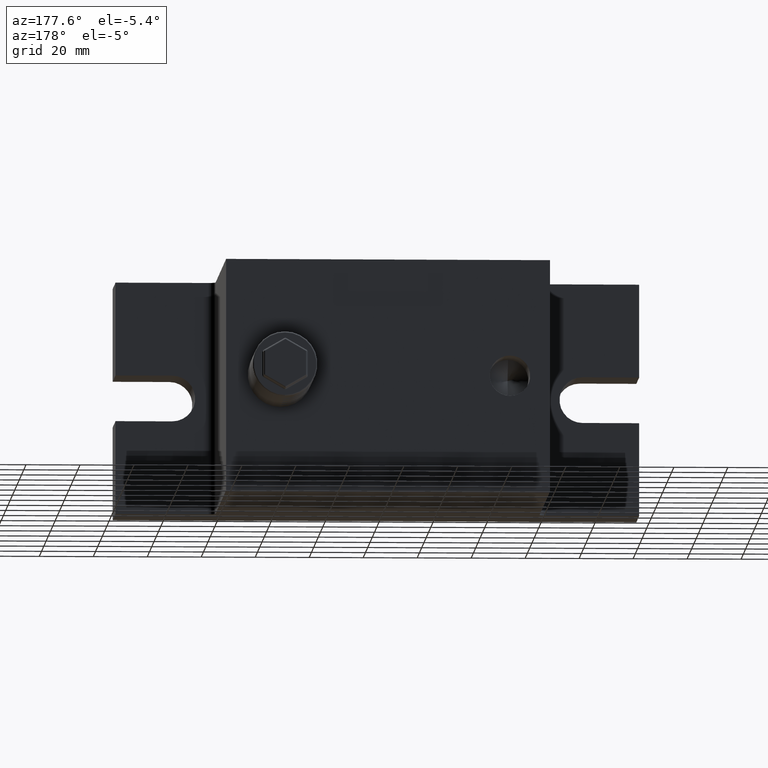
[diagram: clean part render]
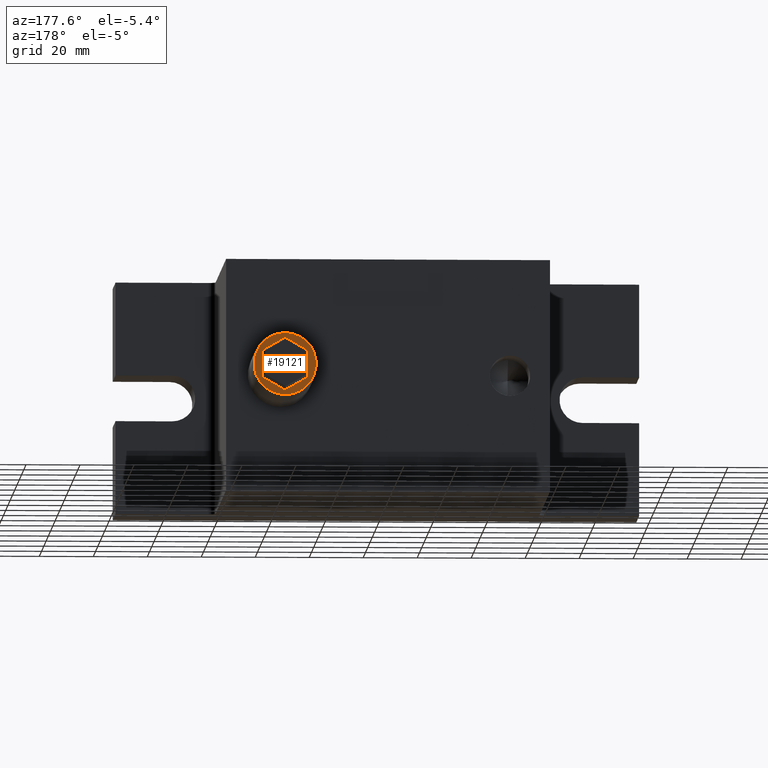
[diagram: same view with one face highlighted and labeled with its STEP entity id]
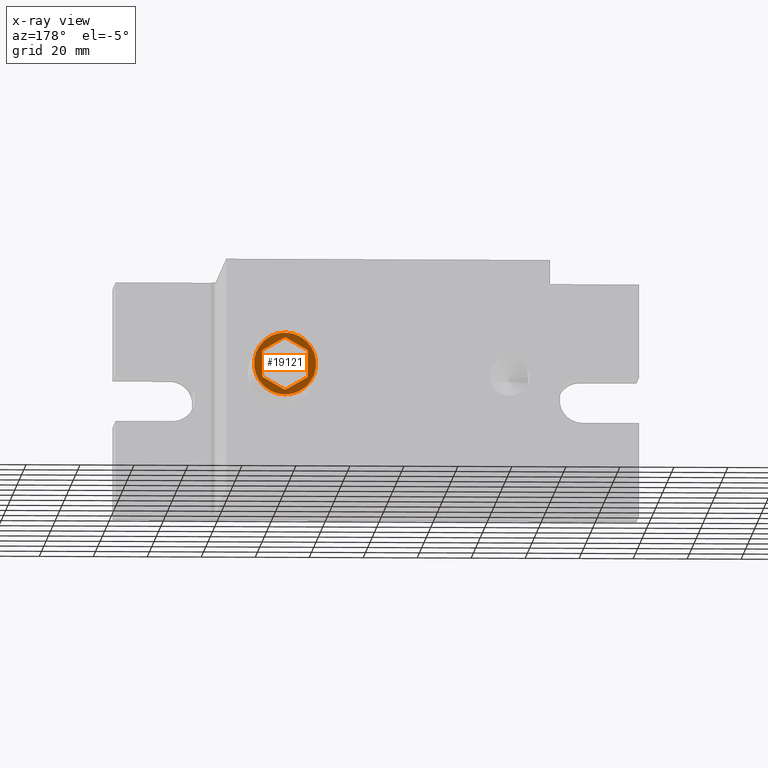
[diagram: x-ray of the same camera — body ghosted, the highlighted face saturated]
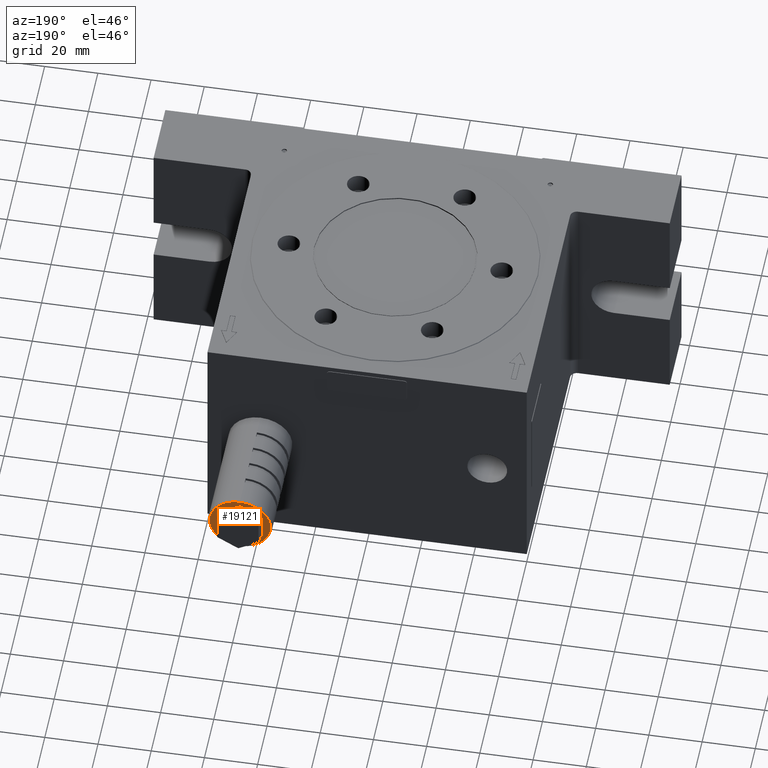
[diagram: same view with one face highlighted and labeled with its STEP entity id]
A machine part, auxiliary view. The second image highlights one B-rep face of the part: STEP entity #19121.
The next image is the same camera in x-ray: the body ghosted, the highlighted face saturated — about 0% of this face is hidden behind the body in this view.
A second angle (auxiliary view) of the same face is appended — the face is thin or edge-on in the first view.
In plain terms, the highlighted planar face has unit normal (0, 1, 0).
Its self-contained STEP definition (entity closure, byte-faithful):
#38 = DIRECTION ( 'NONE',  ( 0.0000000000000000000, 0.0000000000000000000, -1.000000000000000000 ) ) ;
#293 = AXIS2_PLACEMENT_3D ( 'NONE', #22059, #8232, #22123 ) ;
#453 = VERTEX_POINT ( 'NONE', #9742 ) ;
#455 = AXIS2_PLACEMENT_3D ( 'NONE', #21220, #12687, #15991 ) ;
#952 = CARTESIAN_POINT ( 'NONE',  ( 40.00000000000000000, 104.0000000000000000, -9.660254037844390900 ) ) ;
#1334 = LINE ( 'NONE', #6208, #20035 ) ;
#1468 = CARTESIAN_POINT ( 'NONE',  ( 39.50000000000000000, 104.0000000000000000, 9.526279441628821200 ) ) ;
#1549 = DIRECTION ( 'NONE',  ( 0.0000000000000000000, 1.000000000000000000, 0.0000000000000000000 ) ) ;
#1559 = ORIENTED_EDGE ( 'NONE', *, *, #20368, .T. ) ;
#1689 = ORIENTED_EDGE ( 'NONE', *, *, #11625, .F. ) ;
#2076 = CIRCLE ( 'NONE', #2381, 1.000000000000000000 ) ;
#2371 = ORIENTED_EDGE ( 'NONE', *, *, #16605, .T. ) ;
#2381 = AXIS2_PLACEMENT_3D ( 'NONE', #4890, #6469, #8246 ) ;
#2446 = ORIENTED_EDGE ( 'NONE', *, *, #7311, .T. ) ;
#2482 = ORIENTED_EDGE ( 'NONE', *, *, #8569, .F. ) ;
#2816 = CARTESIAN_POINT ( 'NONE',  ( 32.00000000000000000, 104.0000000000000000, -5.196152422706630200 ) ) ;
#3234 = DIRECTION ( 'NONE',  ( 0.0000000000000000000, 0.0000000000000000000, -1.000000000000000000 ) ) ;
#3460 = AXIS2_PLACEMENT_3D ( 'NONE', #7741, #19707, #7900 ) ;
#3499 = DIRECTION ( 'NONE',  ( 0.0000000000000000000, 1.000000000000000000, 0.0000000000000000000 ) ) ;
#3567 = AXIS2_PLACEMENT_3D ( 'NONE', #20327, #22069, #3234 ) ;
#3711 = ORIENTED_EDGE ( 'NONE', *, *, #12226, .T. ) ;
#3713 = VERTEX_POINT ( 'NONE', #1468 ) ;
#4005 = PLANE ( 'NONE',  #7430 ) ;
#4212 = VECTOR ( 'NONE', #15179, 1000.000000000000000 ) ;
#4730 = LINE ( 'NONE', #21878, #21002 ) ;
#4854 = EDGE_CURVE ( 'NONE', #12864, #5279, #13663, .T. ) ;
#4890 = CARTESIAN_POINT ( 'NONE',  ( 40.00000000000000000, 104.0000000000000000, 8.660254037844390900 ) ) ;
#4917 = CARTESIAN_POINT ( 'NONE',  ( 32.50000000000000000, 104.0000000000000000, -4.330127018922191000 ) ) ;
#5225 = EDGE_CURVE ( 'NONE', #18797, #6544, #20899, .T. ) ;
#5279 = VERTEX_POINT ( 'NONE', #16143 ) ;
#5328 = CARTESIAN_POINT ( 'NONE',  ( 48.50000000000000000, 104.0000000000000000, 4.330127018922191000 ) ) ;
#5338 = DIRECTION ( 'NONE',  ( 0.8660254037844387100, -0.0000000000000000000, 0.4999999999999998900 ) ) ;
#5480 = CARTESIAN_POINT ( 'NONE',  ( 48.00000000000000000, 104.0000000000000000, 5.196152422706630200 ) ) ;
#5574 = VERTEX_POINT ( 'NONE', #19814 ) ;
#6187 = AXIS2_PLACEMENT_3D ( 'NONE', #13511, #20512, #11956 ) ;
#6208 = CARTESIAN_POINT ( 'NONE',  ( 48.50000000000000000, 104.0000000000000000, 0.0000000000000000000 ) ) ;
#6422 = ORIENTED_EDGE ( 'NONE', *, *, #19928, .F. ) ;
#6469 = DIRECTION ( 'NONE',  ( 0.0000000000000000000, 1.000000000000000000, 0.0000000000000000000 ) ) ;
#6544 = VERTEX_POINT ( 'NONE', #11961 ) ;
#7217 = AXIS2_PLACEMENT_3D ( 'NONE', #8427, #3499, #15390 ) ;
#7261 = FACE_BOUND ( 'NONE', #15014, .T. ) ;
#7311 = EDGE_CURVE ( 'NONE', #13362, #10158, #1334, .T. ) ;
#7430 = AXIS2_PLACEMENT_3D ( 'NONE', #17822, #21084, #7799 ) ;
#7741 = CARTESIAN_POINT ( 'NONE',  ( 47.50000000000000000, 104.0000000000000000, -4.330127018922199900 ) ) ;
#7799 = DIRECTION ( 'NONE',  ( 0.0000000000000000000, 0.0000000000000000000, -1.000000000000000000 ) ) ;
#7900 = DIRECTION ( 'NONE',  ( 0.0000000000000000000, 0.0000000000000000000, -1.000000000000000000 ) ) ;
#7902 = ORIENTED_EDGE ( 'NONE', *, *, #10884, .F. ) ;
#8053 = AXIS2_PLACEMENT_3D ( 'NONE', #4917, #1549, #38 ) ;
#8232 = DIRECTION ( 'NONE',  ( 0.0000000000000000000, 1.000000000000000000, 0.0000000000000000000 ) ) ;
#8246 = DIRECTION ( 'NONE',  ( 0.0000000000000000000, 0.0000000000000000000, -1.000000000000000000 ) ) ;
#8427 = CARTESIAN_POINT ( 'NONE',  ( 47.50000000000000000, 104.0000000000000000, 4.330127018922191000 ) ) ;
#8497 = ORIENTED_EDGE ( 'NONE', *, *, #5225, .T. ) ;
#8567 = EDGE_CURVE ( 'NONE', #453, #14883, #14821, .T. ) ;
#8569 = EDGE_CURVE ( 'NONE', #16702, #5574, #10565, .T. ) ;
#8814 = DIRECTION ( 'NONE',  ( 0.8660254037844387100, -0.0000000000000000000, -0.4999999999999998900 ) ) ;
#9068 = ORIENTED_EDGE ( 'NONE', *, *, #11858, .F. ) ;
#9390 = FACE_OUTER_BOUND ( 'NONE', #20390, .T. ) ;
#9615 = CARTESIAN_POINT ( 'NONE',  ( 31.50000000000000000, 104.0000000000000000, 0.0000000000000000000 ) ) ;
#9742 = CARTESIAN_POINT ( 'NONE',  ( 40.00000000000000000, 104.0000000000000000, -11.50000000000000000 ) ) ;
#9815 = CIRCLE ( 'NONE', #3567, 1.000000000000000900 ) ;
#10158 = VERTEX_POINT ( 'NONE', #5328 ) ;
#10421 = CARTESIAN_POINT ( 'NONE',  ( 40.00000000000000000, 104.0000000000000000, 11.50000000000000000 ) ) ;
#10565 = CIRCLE ( 'NONE', #8053, 1.000000000000000000 ) ;
#10687 = VERTEX_POINT ( 'NONE', #17609 ) ;
#10795 = CARTESIAN_POINT ( 'NONE',  ( 39.50000000000000000, 104.0000000000000000, -9.526279441628831900 ) ) ;
#10884 = EDGE_CURVE ( 'NONE', #11459, #10158, #20557, .T. ) ;
#11228 = AXIS2_PLACEMENT_3D ( 'NONE', #12124, #13755, #17059 ) ;
#11459 = VERTEX_POINT ( 'NONE', #5480 ) ;
#11625 = EDGE_CURVE ( 'NONE', #3713, #10687, #2076, .T. ) ;
#11668 = DIRECTION ( 'NONE',  ( -0.8660254037844387100, -0.0000000000000000000, -0.4999999999999998900 ) ) ;
#11771 = EDGE_CURVE ( 'NONE', #11459, #10687, #16210, .T. ) ;
#11858 = EDGE_CURVE ( 'NONE', #12449, #19828, #14562, .T. ) ;
#11956 = DIRECTION ( 'NONE',  ( 0.0000000000000000000, 0.0000000000000000000, -1.000000000000000000 ) ) ;
#11961 = CARTESIAN_POINT ( 'NONE',  ( 48.00000000000000000, 104.0000000000000000, -5.196152422706639100 ) ) ;
#11994 = CARTESIAN_POINT ( 'NONE',  ( 35.75000000000000000, 104.0000000000000000, -7.361215932167730200 ) ) ;
#12124 = CARTESIAN_POINT ( 'NONE',  ( 40.00000000000000000, 104.0000000000000000, -8.660254037844390900 ) ) ;
#12226 = EDGE_CURVE ( 'NONE', #3713, #5279, #4730, .T. ) ;
#12449 = VERTEX_POINT ( 'NONE', #952 ) ;
#12584 = ORIENTED_EDGE ( 'NONE', *, *, #4854, .F. ) ;
#12687 = DIRECTION ( 'NONE',  ( 0.0000000000000000000, 1.000000000000000000, 0.0000000000000000000 ) ) ;
#12864 = VERTEX_POINT ( 'NONE', #13979 ) ;
#13362 = VERTEX_POINT ( 'NONE', #16283 ) ;
#13511 = CARTESIAN_POINT ( 'NONE',  ( 40.00000000000000000, 104.0000000000000000, 0.0000000000000000000 ) ) ;
#13663 = CIRCLE ( 'NONE', #293, 1.000000000000000000 ) ;
#13742 = VECTOR ( 'NONE', #16708, 1000.000000000000000 ) ;
#13755 = DIRECTION ( 'NONE',  ( 0.0000000000000000000, 1.000000000000000000, 0.0000000000000000000 ) ) ;
#13979 = CARTESIAN_POINT ( 'NONE',  ( 31.50000000000000000, 104.0000000000000000, 4.330127018922191000 ) ) ;
#14562 = CIRCLE ( 'NONE', #11228, 1.000000000000000900 ) ;
#14816 = LINE ( 'NONE', #9615, #13742 ) ;
#14821 = CIRCLE ( 'NONE', #6187, 11.50000000000000000 ) ;
#14883 = VERTEX_POINT ( 'NONE', #10421 ) ;
#15004 = VECTOR ( 'NONE', #5338, 1000.000000000000000 ) ;
#15014 = EDGE_LOOP ( 'NONE', ( #16581, #8497, #6422, #2446, #7902, #15330, #1689, #3711, #12584, #17771, #2482, #2371, #9068 ) ) ;
#15179 = DIRECTION ( 'NONE',  ( -0.8660254037844387100, -0.0000000000000000000, 0.4999999999999998900 ) ) ;
#15330 = ORIENTED_EDGE ( 'NONE', *, *, #11771, .T. ) ;
#15390 = DIRECTION ( 'NONE',  ( 0.0000000000000000000, 0.0000000000000000000, -1.000000000000000000 ) ) ;
#15736 = CIRCLE ( 'NONE', #455, 11.50000000000000000 ) ;
#15991 = DIRECTION ( 'NONE',  ( 0.0000000000000000000, 0.0000000000000000000, -1.000000000000000000 ) ) ;
#16143 = CARTESIAN_POINT ( 'NONE',  ( 32.00000000000000000, 104.0000000000000000, 5.196152422706630200 ) ) ;
#16210 = LINE ( 'NONE', #21693, #4212 ) ;
#16283 = CARTESIAN_POINT ( 'NONE',  ( 48.50000000000000000, 104.0000000000000000, -4.330127018922199900 ) ) ;
#16417 = EDGE_CURVE ( 'NONE', #18797, #12449, #9815, .T. ) ;
#16565 = DIRECTION ( 'NONE',  ( -0.0000000000000000000, -0.0000000000000000000, 1.000000000000000000 ) ) ;
#16581 = ORIENTED_EDGE ( 'NONE', *, *, #16417, .F. ) ;
#16605 = EDGE_CURVE ( 'NONE', #16702, #19828, #17283, .T. ) ;
#16702 = VERTEX_POINT ( 'NONE', #2816 ) ;
#16708 = DIRECTION ( 'NONE',  ( -0.0000000000000000000, -0.0000000000000000000, -1.000000000000000000 ) ) ;
#17059 = DIRECTION ( 'NONE',  ( 0.0000000000000000000, 0.0000000000000000000, -1.000000000000000000 ) ) ;
#17283 = LINE ( 'NONE', #11994, #19711 ) ;
#17433 = EDGE_CURVE ( 'NONE', #12864, #5574, #14816, .T. ) ;
#17609 = CARTESIAN_POINT ( 'NONE',  ( 40.50000000000000000, 104.0000000000000000, 9.526279441628821200 ) ) ;
#17771 = ORIENTED_EDGE ( 'NONE', *, *, #17433, .T. ) ;
#17822 = CARTESIAN_POINT ( 'NONE',  ( 40.00000000000000000, 104.0000000000000000, 0.0000000000000000000 ) ) ;
#17924 = CARTESIAN_POINT ( 'NONE',  ( 40.50000000000000000, 104.0000000000000000, -9.526279441628831900 ) ) ;
#18291 = ORIENTED_EDGE ( 'NONE', *, *, #8567, .T. ) ;
#18797 = VERTEX_POINT ( 'NONE', #17924 ) ;
#18922 = CARTESIAN_POINT ( 'NONE',  ( 44.25000000000000000, 104.0000000000000000, -7.361215932167730200 ) ) ;
#18982 = CIRCLE ( 'NONE', #3460, 1.000000000000000000 ) ;
#19121 = ADVANCED_FACE ( 'NONE', ( #9390, #7261 ), #4005, .T. ) ;
#19707 = DIRECTION ( 'NONE',  ( 0.0000000000000000000, 1.000000000000000000, 0.0000000000000000000 ) ) ;
#19711 = VECTOR ( 'NONE', #8814, 1000.000000000000000 ) ;
#19814 = CARTESIAN_POINT ( 'NONE',  ( 31.50000000000000000, 104.0000000000000000, -4.330127018922191000 ) ) ;
#19828 = VERTEX_POINT ( 'NONE', #10795 ) ;
#19928 = EDGE_CURVE ( 'NONE', #13362, #6544, #18982, .T. ) ;
#20035 = VECTOR ( 'NONE', #16565, 1000.000000000000000 ) ;
#20327 = CARTESIAN_POINT ( 'NONE',  ( 40.00000000000000000, 104.0000000000000000, -8.660254037844390900 ) ) ;
#20368 = EDGE_CURVE ( 'NONE', #14883, #453, #15736, .T. ) ;
#20390 = EDGE_LOOP ( 'NONE', ( #18291, #1559 ) ) ;
#20512 = DIRECTION ( 'NONE',  ( 0.0000000000000000000, 1.000000000000000000, 0.0000000000000000000 ) ) ;
#20557 = CIRCLE ( 'NONE', #7217, 1.000000000000000000 ) ;
#20899 = LINE ( 'NONE', #18922, #15004 ) ;
#21002 = VECTOR ( 'NONE', #11668, 1000.000000000000000 ) ;
#21084 = DIRECTION ( 'NONE',  ( 0.0000000000000000000, 1.000000000000000000, 0.0000000000000000000 ) ) ;
#21220 = CARTESIAN_POINT ( 'NONE',  ( 40.00000000000000000, 104.0000000000000000, 0.0000000000000000000 ) ) ;
#21693 = CARTESIAN_POINT ( 'NONE',  ( 44.25000000000000000, 104.0000000000000000, 7.361215932167730200 ) ) ;
#21878 = CARTESIAN_POINT ( 'NONE',  ( 35.75000000000000000, 104.0000000000000000, 7.361215932167730200 ) ) ;
#22059 = CARTESIAN_POINT ( 'NONE',  ( 32.50000000000000000, 104.0000000000000000, 4.330127018922191000 ) ) ;
#22069 = DIRECTION ( 'NONE',  ( 0.0000000000000000000, 1.000000000000000000, 0.0000000000000000000 ) ) ;
#22123 = DIRECTION ( 'NONE',  ( 0.0000000000000000000, 0.0000000000000000000, -1.000000000000000000 ) ) ;